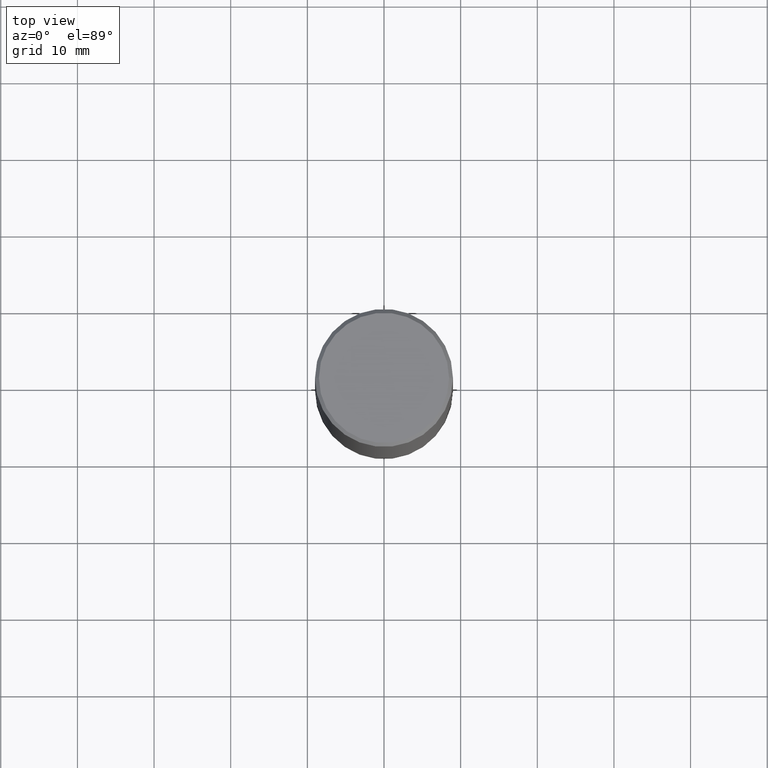
[diagram: clean part render]
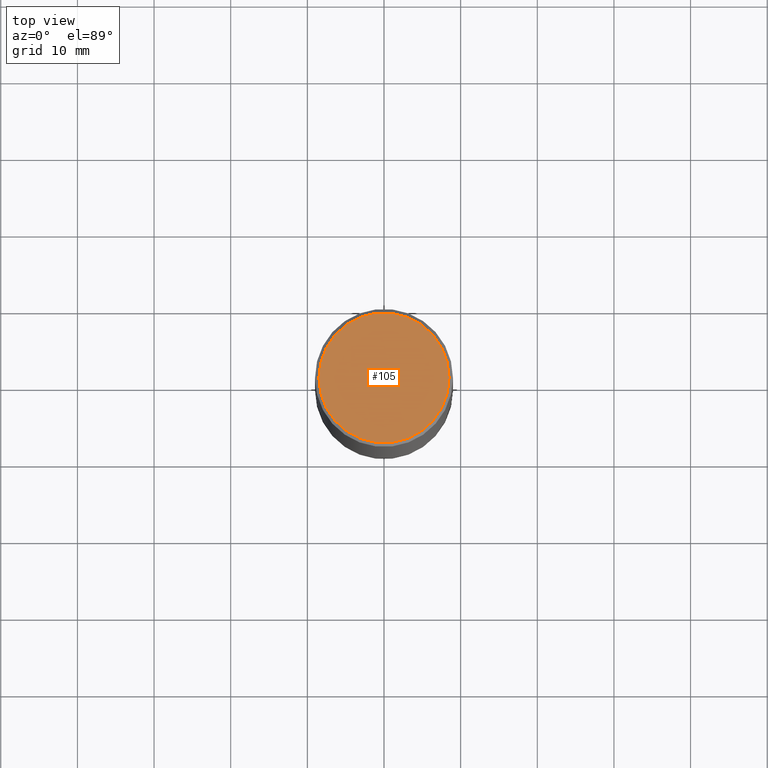
[diagram: same view with one face highlighted and labeled with its STEP entity id]
A machine part, top view. The second image highlights one B-rep face of the part: STEP entity #105.
In plain terms, the highlighted planar face has unit normal (0, -0, -1).
Its self-contained STEP definition (entity closure, byte-faithful):
#9 = DIRECTION ( 'NONE',  ( 1.000000000000000000, -6.982962677686266711E-15, 4.876061227832602160E-29 ) ) ;
#41 = FACE_OUTER_BOUND ( 'NONE', #104, .T. ) ;
#56 = CARTESIAN_POINT ( 'NONE',  ( -1.043851414335219820E-46, 1.490343170380447200E-32, 4.268512490100411279E-18 ) ) ;
#66 = PLANE ( 'NONE',  #223 ) ;
#100 = EDGE_CURVE ( 'NONE', #210, #270, #175, .T. ) ;
#104 = EDGE_LOOP ( 'NONE', ( #139, #261 ) ) ;
#105 = ADVANCED_FACE ( 'NONE', ( #41 ), #66, .F. ) ;
#139 = ORIENTED_EDGE ( 'NONE', *, *, #308, .T. ) ;
#146 = DIRECTION ( 'NONE',  ( -2.445468806185136597E-29, 3.491481338843145583E-15, 1.000000000000000000 ) ) ;
#152 = DIRECTION ( 'NONE',  ( 2.438088387897960049E-29, -3.491481338843145188E-15, -1.000000000000000000 ) ) ;
#157 = CARTESIAN_POINT ( 'NONE',  ( -0.3343499999999996475, 2.369668384672832169E-15, 4.268512490083961526E-18 ) ) ;
#175 = CIRCLE ( 'NONE', #248, 0.3343499999999996475 ) ;
#180 = AXIS2_PLACEMENT_3D ( 'NONE', #56, #311, #342 ) ;
#184 = CARTESIAN_POINT ( 'NONE',  ( 2.334753571284400520E-15, 0.3343499999999996475, -1.165242529397154385E-15 ) ) ;
#210 = VERTEX_POINT ( 'NONE', #357 ) ;
#223 = AXIS2_PLACEMENT_3D ( 'NONE', #184, #152, #273 ) ;
#248 = AXIS2_PLACEMENT_3D ( 'NONE', #326, #146, #9 ) ;
#261 = ORIENTED_EDGE ( 'NONE', *, *, #100, .T. ) ;
#270 = VERTEX_POINT ( 'NONE', #157 ) ;
#273 = DIRECTION ( 'NONE',  ( -1.000000000000000000, 6.982962677686265922E-15, -4.876176775795935793E-29 ) ) ;
#308 = EDGE_CURVE ( 'NONE', #270, #210, #360, .T. ) ;
#311 = DIRECTION ( 'NONE',  ( -2.445468806185136597E-29, 3.491481338843145583E-15, 1.000000000000000000 ) ) ;
#326 = CARTESIAN_POINT ( 'NONE',  ( -1.043851414335219820E-46, 1.490343170380447200E-32, 4.268512490100411279E-18 ) ) ;
#342 = DIRECTION ( 'NONE',  ( 1.000000000000000000, -6.982962677686266711E-15, 4.876061227832602160E-29 ) ) ;
#357 = CARTESIAN_POINT ( 'NONE',  ( 0.3343499999999996475, -2.397327298921056737E-15, 4.268512490116958099E-18 ) ) ;
#360 = CIRCLE ( 'NONE', #180, 0.3343499999999996475 ) ;